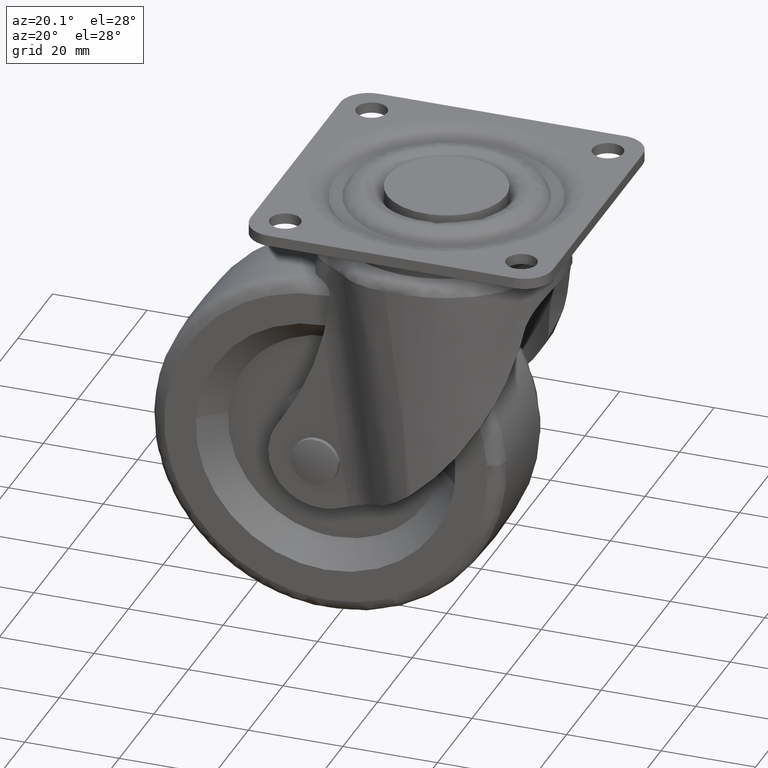
[diagram: clean part render]
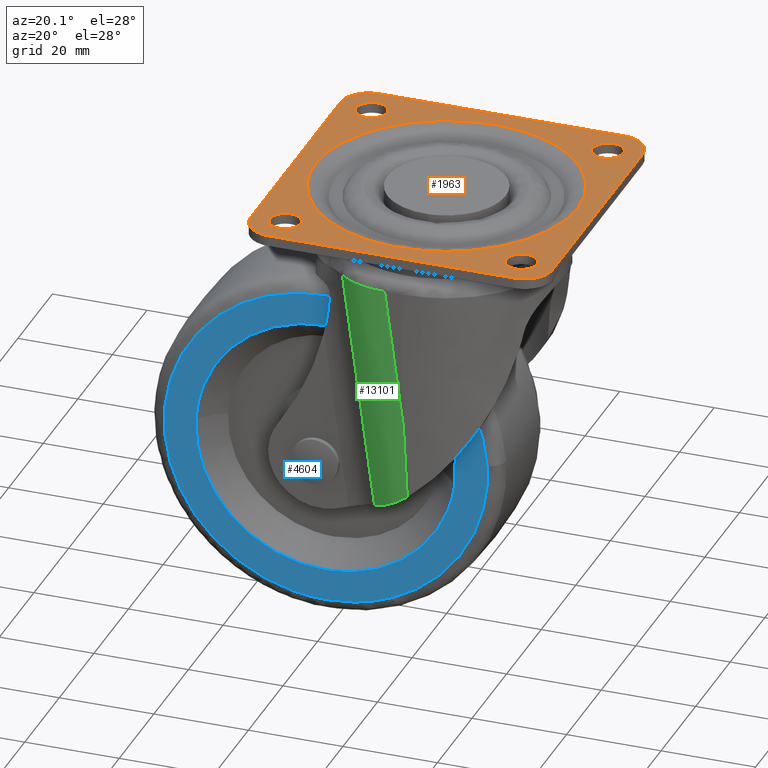
[diagram: same view with three faces highlighted in distinct colors, each labeled with its STEP entity id]
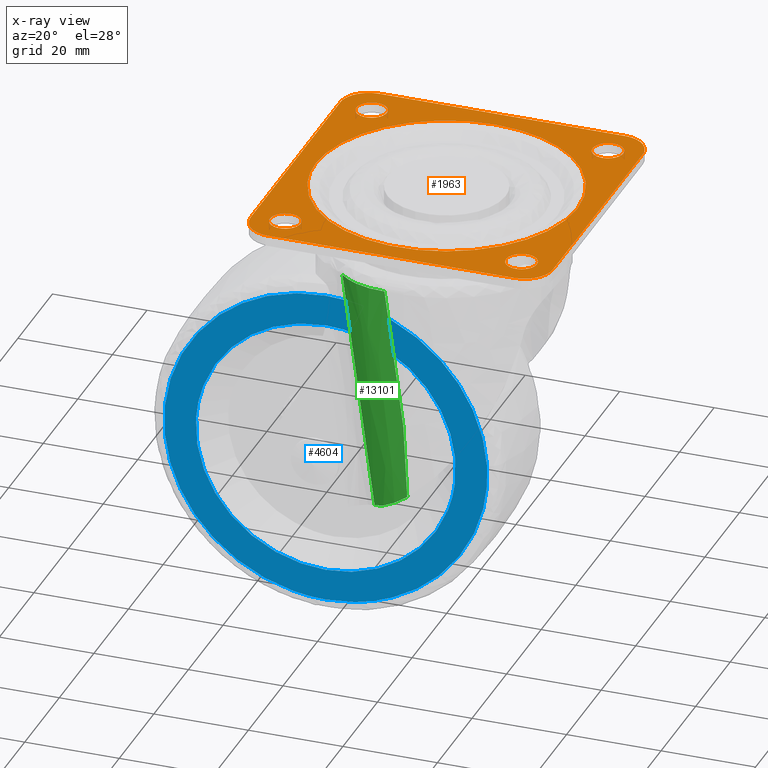
[diagram: x-ray of the same camera — body ghosted, the three highlighted faces saturated]
A machine part, auxiliary view with three faces highlighted in distinct colors.
The next image is the same camera in x-ray (body ghosted, the three faces saturated) — at least one of them is partly hidden behind the body in this view.
Their STEP definitions:

[orange] entity #1963 — the highlighted face is a freeform B-spline surface patch.
#66=CARTESIAN_POINT('',(-25.383611262667031,21.772719039321959,-2.484500E-017));
#67=VERTEX_POINT('',#66);
#68=CARTESIAN_POINT('',(-21.750000000000000,25.0,0.0));
#69=VERTEX_POINT('',#68);
#70=CARTESIAN_POINT('',(-25.383611262667031,21.772719039321956,-2.484500E-017));
#71=CARTESIAN_POINT('',(-25.192478388901616,21.750000000000000,0.0));
#72=CARTESIAN_POINT('',(-25.0,21.750000000000000,0.0));
#73=CARTESIAN_POINT('',(-21.750000000000004,21.750000000000004,0.0));
#74=CARTESIAN_POINT('',(-21.750000000000000,25.0,0.0));
#82=(BOUNDED_CURVE()B_SPLINE_CURVE(2,(#70,#71,#72,#73,#74),.UNSPECIFIED.,.F.,.U.)B_SPLINE_CURVE_WITH_KNOTS((3,2,3),(0.229562473512234,0.250000000000000,0.500000000000000),.UNSPECIFIED.)CURVE()GEOMETRIC_REPRESENTATION_ITEM()RATIONAL_B_SPLINE_CURVE((0.956026754181201,0.976055948329652,1.0,0.707106781186547,1.0))REPRESENTATION_ITEM(''));
#83=EDGE_CURVE('',#67,#69,#82,.T.);
#85=CARTESIAN_POINT('',(-24.801592246405111,28.243938094864550,-2.081668E-017));
#86=VERTEX_POINT('',#85);
#87=CARTESIAN_POINT('',(-21.750000000000000,25.0,0.0));
#88=CARTESIAN_POINT('',(-21.750000000000000,28.057294717242190,0.0));
#89=CARTESIAN_POINT('',(-24.801592246405107,28.243938094864546,-2.081668E-017));
#97=(BOUNDED_CURVE()B_SPLINE_CURVE(2,(#87,#88,#89),.UNSPECIFIED.,.F.,.U.)B_SPLINE_CURVE_WITH_KNOTS((3,3),(0.500000000000000,0.739332962230627),.UNSPECIFIED.)CURVE()GEOMETRIC_REPRESENTATION_ITEM()RATIONAL_B_SPLINE_CURVE((1.0,0.719603993296452,0.976072041648896))REPRESENTATION_ITEM(''));
#98=EDGE_CURVE('',#69,#86,#97,.T.);
#165=CARTESIAN_POINT('',(-28.250000000000000,25.0,0.0));
#166=VERTEX_POINT('',#165);
#167=CARTESIAN_POINT('',(-28.250000000000000,25.0,0.0));
#168=CARTESIAN_POINT('',(-28.250000000000007,22.113432790716725,0.0));
#169=CARTESIAN_POINT('',(-25.383611262667035,21.772719039321952,-2.484500E-017));
#177=(BOUNDED_CURVE()B_SPLINE_CURVE(2,(#167,#168,#169),.UNSPECIFIED.,.F.,.U.)B_SPLINE_CURVE_WITH_KNOTS((3,3),(0.0,0.229562473512234),.UNSPECIFIED.)CURVE()GEOMETRIC_REPRESENTATION_ITEM()RATIONAL_B_SPLINE_CURVE((1.0,0.731050832856896,0.956026754181201))REPRESENTATION_ITEM(''));
#178=EDGE_CURVE('',#166,#67,#177,.T.);
#212=CARTESIAN_POINT('',(-24.801592246405104,28.243938094864550,-2.081668E-017));
#213=CARTESIAN_POINT('',(-24.900703519172684,28.250000000000004,0.0));
#214=CARTESIAN_POINT('',(-25.0,28.250000000000000,0.0));
#215=CARTESIAN_POINT('',(-28.250000000000004,28.250000000000004,0.0));
#216=CARTESIAN_POINT('',(-28.250000000000000,25.0,0.0));
#224=(BOUNDED_CURVE()B_SPLINE_CURVE(2,(#212,#213,#214,#215,#216),.UNSPECIFIED.,.F.,.U.)B_SPLINE_CURVE_WITH_KNOTS((3,2,3),(0.739332962230627,0.750000000000000,1.0),.UNSPECIFIED.)CURVE()GEOMETRIC_REPRESENTATION_ITEM()RATIONAL_B_SPLINE_CURVE((0.976072041648896,0.987502787890095,1.0,0.707106781186547,1.0))REPRESENTATION_ITEM(''));
#225=EDGE_CURVE('',#86,#166,#224,.T.);
#468=CARTESIAN_POINT('',(24.616388737332969,21.772719039321959,-2.484500E-017));
#469=VERTEX_POINT('',#468);
#470=CARTESIAN_POINT('',(28.250000000000000,25.0,0.0));
#471=VERTEX_POINT('',#470);
#472=CARTESIAN_POINT('',(24.616388737332972,21.772719039321963,-2.484500E-017));
#473=CARTESIAN_POINT('',(24.807521611098380,21.750000000000004,0.0));
#474=CARTESIAN_POINT('',(25.0,21.750000000000000,0.0));
#475=CARTESIAN_POINT('',(28.250000000000004,21.750000000000004,0.0));
#476=CARTESIAN_POINT('',(28.250000000000000,25.0,0.0));
#484=(BOUNDED_CURVE()B_SPLINE_CURVE(2,(#472,#473,#474,#475,#476),.UNSPECIFIED.,.F.,.U.)B_SPLINE_CURVE_WITH_KNOTS((3,2,3),(0.229562473512233,0.250000000000000,0.500000000000000),.UNSPECIFIED.)CURVE()GEOMETRIC_REPRESENTATION_ITEM()RATIONAL_B_SPLINE_CURVE((0.956026754181200,0.976055948329651,1.0,0.707106781186547,1.0))REPRESENTATION_ITEM(''));
#485=EDGE_CURVE('',#469,#471,#484,.T.);
#487=CARTESIAN_POINT('',(25.198407753594889,28.243938094864550,-2.081668E-017));
#488=VERTEX_POINT('',#487);
#489=CARTESIAN_POINT('',(28.250000000000000,25.0,0.0));
#490=CARTESIAN_POINT('',(28.249999999999996,28.057294717242190,0.0));
#491=CARTESIAN_POINT('',(25.198407753594896,28.243938094864546,-2.081668E-017));
#499=(BOUNDED_CURVE()B_SPLINE_CURVE(2,(#489,#490,#491),.UNSPECIFIED.,.F.,.U.)B_SPLINE_CURVE_WITH_KNOTS((3,3),(0.500000000000000,0.739332962230627),.UNSPECIFIED.)CURVE()GEOMETRIC_REPRESENTATION_ITEM()RATIONAL_B_SPLINE_CURVE((1.0,0.719603993296452,0.976072041648896))REPRESENTATION_ITEM(''));
#500=EDGE_CURVE('',#471,#488,#499,.T.);
#567=CARTESIAN_POINT('',(21.750000000000000,25.0,0.0));
#568=VERTEX_POINT('',#567);
#569=CARTESIAN_POINT('',(21.750000000000000,25.0,0.0));
#570=CARTESIAN_POINT('',(21.750000000000004,22.113432790716718,0.0));
#571=CARTESIAN_POINT('',(24.616388737332969,21.772719039321956,-2.484500E-017));
#579=(BOUNDED_CURVE()B_SPLINE_CURVE(2,(#569,#570,#571),.UNSPECIFIED.,.F.,.U.)B_SPLINE_CURVE_WITH_KNOTS((3,3),(0.0,0.229562473512233),.UNSPECIFIED.)CURVE()GEOMETRIC_REPRESENTATION_ITEM()RATIONAL_B_SPLINE_CURVE((1.0,0.731050832856896,0.956026754181201))REPRESENTATION_ITEM(''));
#580=EDGE_CURVE('',#568,#469,#579,.T.);
#614=CARTESIAN_POINT('',(25.198407753594889,28.243938094864554,-2.081668E-017));
#615=CARTESIAN_POINT('',(25.099296480827327,28.250000000000000,0.0));
#616=CARTESIAN_POINT('',(25.0,28.250000000000000,0.0));
#617=CARTESIAN_POINT('',(21.750000000000004,28.250000000000004,0.0));
#618=CARTESIAN_POINT('',(21.750000000000000,25.0,0.0));
#626=(BOUNDED_CURVE()B_SPLINE_CURVE(2,(#614,#615,#616,#617,#618),.UNSPECIFIED.,.F.,.U.)B_SPLINE_CURVE_WITH_KNOTS((3,2,3),(0.739332962230627,0.750000000000000,1.0),.UNSPECIFIED.)CURVE()GEOMETRIC_REPRESENTATION_ITEM()RATIONAL_B_SPLINE_CURVE((0.976072041648895,0.987502787890095,1.0,0.707106781186547,1.0))REPRESENTATION_ITEM(''));
#627=EDGE_CURVE('',#488,#568,#626,.T.);
#654=CARTESIAN_POINT('',(24.616388737332969,-28.227280960678041,-2.484500E-017));
#655=VERTEX_POINT('',#654);
#656=CARTESIAN_POINT('',(28.250000000000000,-25.0,0.0));
#657=VERTEX_POINT('',#656);
#658=CARTESIAN_POINT('',(24.616388737332962,-28.227280960678044,-2.484500E-017));
#659=CARTESIAN_POINT('',(24.807521611098380,-28.250000000000000,0.0));
#660=CARTESIAN_POINT('',(25.0,-28.250000000000000,0.0));
#661=CARTESIAN_POINT('',(28.250000000000004,-28.250000000000004,0.0));
#662=CARTESIAN_POINT('',(28.250000000000000,-25.0,0.0));
#670=(BOUNDED_CURVE()B_SPLINE_CURVE(2,(#658,#659,#660,#661,#662),.UNSPECIFIED.,.F.,.U.)B_SPLINE_CURVE_WITH_KNOTS((3,2,3),(0.229562473512233,0.250000000000000,0.500000000000000),.UNSPECIFIED.)CURVE()GEOMETRIC_REPRESENTATION_ITEM()RATIONAL_B_SPLINE_CURVE((0.956026754181200,0.976055948329651,1.0,0.707106781186547,1.0))REPRESENTATION_ITEM(''));
#671=EDGE_CURVE('',#655,#657,#670,.T.);
#673=CARTESIAN_POINT('',(25.198407753594889,-21.756061905135450,-2.081668E-017));
#674=VERTEX_POINT('',#673);
#675=CARTESIAN_POINT('',(28.250000000000000,-25.0,0.0));
#676=CARTESIAN_POINT('',(28.249999999999996,-21.942705282757821,0.0));
#677=CARTESIAN_POINT('',(25.198407753594896,-21.756061905135454,-2.081668E-017));
#685=(BOUNDED_CURVE()B_SPLINE_CURVE(2,(#675,#676,#677),.UNSPECIFIED.,.F.,.U.)B_SPLINE_CURVE_WITH_KNOTS((3,3),(0.500000000000000,0.739332962230627),.UNSPECIFIED.)CURVE()GEOMETRIC_REPRESENTATION_ITEM()RATIONAL_B_SPLINE_CURVE((1.0,0.719603993296452,0.976072041648896))REPRESENTATION_ITEM(''));
#686=EDGE_CURVE('',#657,#674,#685,.T.);
#753=CARTESIAN_POINT('',(21.750000000000000,-25.0,0.0));
#754=VERTEX_POINT('',#753);
#755=CARTESIAN_POINT('',(21.750000000000000,-25.0,0.0));
#756=CARTESIAN_POINT('',(21.750000000000011,-27.886567209283278,0.0));
#757=CARTESIAN_POINT('',(24.616388737332969,-28.227280960678044,-2.484500E-017));
#765=(BOUNDED_CURVE()B_SPLINE_CURVE(2,(#755,#756,#757),.UNSPECIFIED.,.F.,.U.)B_SPLINE_CURVE_WITH_KNOTS((3,3),(0.0,0.229562473512233),.UNSPECIFIED.)CURVE()GEOMETRIC_REPRESENTATION_ITEM()RATIONAL_B_SPLINE_CURVE((1.0,0.731050832856896,0.956026754181200))REPRESENTATION_ITEM(''));
#766=EDGE_CURVE('',#754,#655,#765,.T.);
#800=CARTESIAN_POINT('',(25.198407753594893,-21.756061905135457,-2.081668E-017));
#801=CARTESIAN_POINT('',(25.099296480827316,-21.750000000000000,0.0));
#802=CARTESIAN_POINT('',(25.0,-21.750000000000000,0.0));
#803=CARTESIAN_POINT('',(21.750000000000004,-21.750000000000004,0.0));
#804=CARTESIAN_POINT('',(21.750000000000000,-25.0,0.0));
#812=(BOUNDED_CURVE()B_SPLINE_CURVE(2,(#800,#801,#802,#803,#804),.UNSPECIFIED.,.F.,.U.)B_SPLINE_CURVE_WITH_KNOTS((3,2,3),(0.739332962230627,0.750000000000000,1.0),.UNSPECIFIED.)CURVE()GEOMETRIC_REPRESENTATION_ITEM()RATIONAL_B_SPLINE_CURVE((0.976072041648895,0.987502787890095,1.0,0.707106781186547,1.0))REPRESENTATION_ITEM(''));
#813=EDGE_CURVE('',#674,#754,#812,.T.);
#840=CARTESIAN_POINT('',(-25.383611262667031,-28.227280960678041,-2.484500E-017));
#841=VERTEX_POINT('',#840);
#842=CARTESIAN_POINT('',(-21.750000000000000,-25.0,0.0));
#843=VERTEX_POINT('',#842);
#844=CARTESIAN_POINT('',(-25.383611262667028,-28.227280960678044,-2.484500E-017));
#845=CARTESIAN_POINT('',(-25.192478388901623,-28.250000000000000,0.0));
#846=CARTESIAN_POINT('',(-25.0,-28.250000000000000,0.0));
#847=CARTESIAN_POINT('',(-21.750000000000004,-28.250000000000004,0.0));
#848=CARTESIAN_POINT('',(-21.750000000000000,-25.0,0.0));
#856=(BOUNDED_CURVE()B_SPLINE_CURVE(2,(#844,#845,#846,#847,#848),.UNSPECIFIED.,.F.,.U.)B_SPLINE_CURVE_WITH_KNOTS((3,2,3),(0.229562473512233,0.250000000000000,0.500000000000000),.UNSPECIFIED.)CURVE()GEOMETRIC_REPRESENTATION_ITEM()RATIONAL_B_SPLINE_CURVE((0.956026754181200,0.976055948329651,1.0,0.707106781186547,1.0))REPRESENTATION_ITEM(''));
#857=EDGE_CURVE('',#841,#843,#856,.T.);
#859=CARTESIAN_POINT('',(-24.801592246405111,-21.756061905135450,-2.081668E-017));
#860=VERTEX_POINT('',#859);
#861=CARTESIAN_POINT('',(-21.750000000000000,-25.0,0.0));
#862=CARTESIAN_POINT('',(-21.750000000000000,-21.942705282757821,0.0));
#863=CARTESIAN_POINT('',(-24.801592246405107,-21.756061905135454,-2.081668E-017));
#871=(BOUNDED_CURVE()B_SPLINE_CURVE(2,(#861,#862,#863),.UNSPECIFIED.,.F.,.U.)B_SPLINE_CURVE_WITH_KNOTS((3,3),(0.500000000000000,0.739332962230627),.UNSPECIFIED.)CURVE()GEOMETRIC_REPRESENTATION_ITEM()RATIONAL_B_SPLINE_CURVE((1.0,0.719603993296452,0.976072041648896))REPRESENTATION_ITEM(''));
#872=EDGE_CURVE('',#843,#860,#871,.T.);
#939=CARTESIAN_POINT('',(-28.250000000000000,-25.0,0.0));
#940=VERTEX_POINT('',#939);
#941=CARTESIAN_POINT('',(-28.250000000000000,-25.0,0.0));
#942=CARTESIAN_POINT('',(-28.250000000000004,-27.886567209283278,0.0));
#943=CARTESIAN_POINT('',(-25.383611262667035,-28.227280960678044,-2.484500E-017));
#951=(BOUNDED_CURVE()B_SPLINE_CURVE(2,(#941,#942,#943),.UNSPECIFIED.,.F.,.U.)B_SPLINE_CURVE_WITH_KNOTS((3,3),(0.0,0.229562473512233),.UNSPECIFIED.)CURVE()GEOMETRIC_REPRESENTATION_ITEM()RATIONAL_B_SPLINE_CURVE((1.0,0.731050832856896,0.956026754181200))REPRESENTATION_ITEM(''));
#952=EDGE_CURVE('',#940,#841,#951,.T.);
#986=CARTESIAN_POINT('',(-24.801592246405104,-21.756061905135450,-2.081668E-017));
#987=CARTESIAN_POINT('',(-24.900703519172684,-21.750000000000000,0.0));
#988=CARTESIAN_POINT('',(-25.0,-21.750000000000000,0.0));
#989=CARTESIAN_POINT('',(-28.250000000000004,-21.750000000000004,0.0));
#990=CARTESIAN_POINT('',(-28.250000000000000,-25.0,0.0));
#998=(BOUNDED_CURVE()B_SPLINE_CURVE(2,(#986,#987,#988,#989,#990),.UNSPECIFIED.,.F.,.U.)B_SPLINE_CURVE_WITH_KNOTS((3,2,3),(0.739332962230627,0.750000000000000,1.0),.UNSPECIFIED.)CURVE()GEOMETRIC_REPRESENTATION_ITEM()RATIONAL_B_SPLINE_CURVE((0.976072041648896,0.987502787890095,1.0,0.707106781186547,1.0))REPRESENTATION_ITEM(''));
#999=EDGE_CURVE('',#860,#940,#998,.T.);
#1446=CARTESIAN_POINT('',(-23.394912635989090,14.846863023167520,-7.310575E-016));
#1447=VERTEX_POINT('',#1446);
#1461=CARTESIAN_POINT('',(-27.708325082500149,0.0,0.0));
#1462=VERTEX_POINT('',#1461);
#1463=CARTESIAN_POINT('',(-27.708325082500149,0.0,0.0));
#1464=CARTESIAN_POINT('',(-27.708325082500153,8.050012591533500,0.0));
#1465=CARTESIAN_POINT('',(-23.394912635989094,14.846863023167518,-7.310575E-016));
#1473=(BOUNDED_CURVE()B_SPLINE_CURVE(2,(#1463,#1464,#1465),.UNSPECIFIED.,.F.,.U.)B_SPLINE_CURVE_WITH_KNOTS((3,3),(0.0,0.091683542668478),.UNSPECIFIED.)CURVE()GEOMETRIC_REPRESENTATION_ITEM()RATIONAL_B_SPLINE_CURVE((1.0,0.892586048302436,0.863956829594100))REPRESENTATION_ITEM(''));
#1474=EDGE_CURVE('',#1462,#1447,#1473,.T.);
#1476=CARTESIAN_POINT('',(27.708325082500149,0.0,0.0));
#1477=VERTEX_POINT('',#1476);
#1478=CARTESIAN_POINT('',(27.708325082500149,0.0,0.0));
#1479=CARTESIAN_POINT('',(27.708325082500160,-27.708325082500160,0.0));
#1480=CARTESIAN_POINT('',(0.0,-27.708325082500149,0.0));
#1481=CARTESIAN_POINT('',(-27.708325082500160,-27.708325082500160,0.0));
#1482=CARTESIAN_POINT('',(-27.708325082500149,0.0,0.0));
#1490=(BOUNDED_CURVE()B_SPLINE_CURVE(2,(#1478,#1479,#1480,#1481,#1482),.UNSPECIFIED.,.F.,.U.)B_SPLINE_CURVE_WITH_KNOTS((3,2,3),(0.500000000000000,0.750000000000000,1.0),.UNSPECIFIED.)CURVE()GEOMETRIC_REPRESENTATION_ITEM()RATIONAL_B_SPLINE_CURVE((1.0,0.707106781186548,1.0,0.707106781186548,1.0))REPRESENTATION_ITEM(''));
#1491=EDGE_CURVE('',#1477,#1462,#1490,.T.);
#1493=CARTESIAN_POINT('',(14.846863023167510,23.394912635989090,-6.701361E-016));
#1494=VERTEX_POINT('',#1493);
#1495=CARTESIAN_POINT('',(14.846863023167510,23.394912635989098,-6.701361E-016));
#1496=CARTESIAN_POINT('',(27.708325082500160,15.232780618563753,0.0));
#1497=CARTESIAN_POINT('',(27.708325082500149,0.0,0.0));
#1505=(BOUNDED_CURVE()B_SPLINE_CURVE(2,(#1495,#1496,#1497),.UNSPECIFIED.,.F.,.U.)B_SPLINE_CURVE_WITH_KNOTS((3,3),(0.341683542668478,0.500000000000000),.UNSPECIFIED.)CURVE()GEOMETRIC_REPRESENTATION_ITEM()RATIONAL_B_SPLINE_CURVE((0.863956829594100,0.814520732884111,1.0))REPRESENTATION_ITEM(''));
#1506=EDGE_CURVE('',#1494,#1477,#1505,.T.);
#1557=CARTESIAN_POINT('',(-23.394912635989098,14.846863023167520,-7.310575E-016));
#1558=CARTESIAN_POINT('',(-15.232780618563750,27.708325082500156,0.0));
#1559=CARTESIAN_POINT('',(0.0,27.708325082500149,0.0));
#1560=CARTESIAN_POINT('',(8.050012591533518,27.708325082500146,0.0));
#1561=CARTESIAN_POINT('',(14.846863023167510,23.394912635989098,-6.701361E-016));
#1569=(BOUNDED_CURVE()B_SPLINE_CURVE(2,(#1557,#1558,#1559,#1560,#1561),.UNSPECIFIED.,.F.,.U.)B_SPLINE_CURVE_WITH_KNOTS((3,2,3),(0.091683542668478,0.250000000000000,0.341683542668478),.UNSPECIFIED.)CURVE()GEOMETRIC_REPRESENTATION_ITEM()RATIONAL_B_SPLINE_CURVE((0.863956829594100,0.814520732884111,1.0,0.892586048302436,0.863956829594100))REPRESENTATION_ITEM(''));
#1570=EDGE_CURVE('',#1447,#1494,#1569,.T.);
#1838=CARTESIAN_POINT('',(-35.196799875955577,35.196799875955577,0.0));
#1839=CARTESIAN_POINT('',(35.196801592569351,35.196799875955577,0.0));
#1840=CARTESIAN_POINT('',(-35.196799875955577,-35.196801592569351,0.0));
#1841=CARTESIAN_POINT('',(35.196801592569351,-35.196801592569351,0.0));
#1842=B_SPLINE_SURFACE_WITH_KNOTS('',1,1,((#1838,#1840),(#1839,#1841)),.UNSPECIFIED.,.F.,.F.,.U.,(2,2),(2,2),(0.0,70.393601468524935),(0.0,70.393601468524935),.UNSPECIFIED.);
#1843=CARTESIAN_POINT('',(32.0,26.0,0.0));
#1844=VERTEX_POINT('',#1843);
#1845=CARTESIAN_POINT('',(26.0,32.0,0.0));
#1846=VERTEX_POINT('',#1845);
#1847=CARTESIAN_POINT('',(32.0,26.0,0.0));
#1848=CARTESIAN_POINT('',(31.999999999999996,31.999999999999996,0.0));
#1849=CARTESIAN_POINT('',(26.0,32.0,0.0));
#1857=(BOUNDED_CURVE()B_SPLINE_CURVE(2,(#1847,#1848,#1849),.UNSPECIFIED.,.F.,.U.)CURVE()GEOMETRIC_REPRESENTATION_ITEM()QUASI_UNIFORM_CURVE()RATIONAL_B_SPLINE_CURVE((1.0,0.707106781186548,1.0))REPRESENTATION_ITEM(''));
#1858=EDGE_CURVE('',#1844,#1846,#1857,.T.);
#1859=ORIENTED_EDGE('',*,*,#1858,.T.);
#1860=CARTESIAN_POINT('',(-26.0,32.0,0.0));
#1861=VERTEX_POINT('',#1860);
#1862=CARTESIAN_POINT('',(26.0,32.0,0.0));
#1863=CARTESIAN_POINT('',(-26.0,32.0,0.0));
#1864=QUASI_UNIFORM_CURVE('',1,(#1862,#1863),.UNSPECIFIED.,.F.,.U.);
#1865=EDGE_CURVE('',#1846,#1861,#1864,.T.);
#1866=ORIENTED_EDGE('',*,*,#1865,.T.);
#1867=CARTESIAN_POINT('',(-32.0,26.0,0.0));
#1868=VERTEX_POINT('',#1867);
#1869=CARTESIAN_POINT('',(-26.0,32.0,0.0));
#1870=CARTESIAN_POINT('',(-31.999999999999996,31.999999999999996,0.0));
#1871=CARTESIAN_POINT('',(-32.0,26.0,0.0));
#1879=(BOUNDED_CURVE()B_SPLINE_CURVE(2,(#1869,#1870,#1871),.UNSPECIFIED.,.F.,.U.)CURVE()GEOMETRIC_REPRESENTATION_ITEM()QUASI_UNIFORM_CURVE()RATIONAL_B_SPLINE_CURVE((1.0,0.707106781186548,1.0))REPRESENTATION_ITEM(''));
#1880=EDGE_CURVE('',#1861,#1868,#1879,.T.);
#1881=ORIENTED_EDGE('',*,*,#1880,.T.);
#1882=CARTESIAN_POINT('',(-32.0,-26.0,0.0));
#1883=VERTEX_POINT('',#1882);
#1884=CARTESIAN_POINT('',(-32.0,26.0,0.0));
#1885=CARTESIAN_POINT('',(-32.0,-26.0,0.0));
#1886=QUASI_UNIFORM_CURVE('',1,(#1884,#1885),.UNSPECIFIED.,.F.,.U.);
#1887=EDGE_CURVE('',#1868,#1883,#1886,.T.);
#1888=ORIENTED_EDGE('',*,*,#1887,.T.);
#1889=CARTESIAN_POINT('',(-26.0,-32.0,0.0));
#1890=VERTEX_POINT('',#1889);
#1891=CARTESIAN_POINT('',(-32.0,-26.0,0.0));
#1892=CARTESIAN_POINT('',(-31.999999999999996,-31.999999999999996,0.0));
#1893=CARTESIAN_POINT('',(-26.0,-32.0,0.0));
#1901=(BOUNDED_CURVE()B_SPLINE_CURVE(2,(#1891,#1892,#1893),.UNSPECIFIED.,.F.,.U.)CURVE()GEOMETRIC_REPRESENTATION_ITEM()QUASI_UNIFORM_CURVE()RATIONAL_B_SPLINE_CURVE((1.0,0.707106781186548,1.0))REPRESENTATION_ITEM(''));
#1902=EDGE_CURVE('',#1883,#1890,#1901,.T.);
#1903=ORIENTED_EDGE('',*,*,#1902,.T.);
#1904=CARTESIAN_POINT('',(26.0,-32.0,0.0));
#1905=VERTEX_POINT('',#1904);
#1906=CARTESIAN_POINT('',(-26.0,-32.0,0.0));
#1907=CARTESIAN_POINT('',(26.0,-32.0,0.0));
#1908=QUASI_UNIFORM_CURVE('',1,(#1906,#1907),.UNSPECIFIED.,.F.,.U.);
#1909=EDGE_CURVE('',#1890,#1905,#1908,.T.);
#1910=ORIENTED_EDGE('',*,*,#1909,.T.);
#1911=CARTESIAN_POINT('',(32.0,-26.0,0.0));
#1912=VERTEX_POINT('',#1911);
#1913=CARTESIAN_POINT('',(26.0,-32.0,0.0));
#1914=CARTESIAN_POINT('',(31.999999999999996,-31.999999999999996,0.0));
#1915=CARTESIAN_POINT('',(32.0,-26.0,0.0));
#1923=(BOUNDED_CURVE()B_SPLINE_CURVE(2,(#1913,#1914,#1915),.UNSPECIFIED.,.F.,.U.)CURVE()GEOMETRIC_REPRESENTATION_ITEM()QUASI_UNIFORM_CURVE()RATIONAL_B_SPLINE_CURVE((1.0,0.707106781186548,1.0))REPRESENTATION_ITEM(''));
#1924=EDGE_CURVE('',#1905,#1912,#1923,.T.);
#1925=ORIENTED_EDGE('',*,*,#1924,.T.);
#1926=CARTESIAN_POINT('',(32.0,-26.0,0.0));
#1927=CARTESIAN_POINT('',(32.0,26.0,0.0));
#1928=QUASI_UNIFORM_CURVE('',1,(#1926,#1927),.UNSPECIFIED.,.F.,.U.);
#1929=EDGE_CURVE('',#1912,#1844,#1928,.T.);
#1930=ORIENTED_EDGE('',*,*,#1929,.T.);
#1931=EDGE_LOOP('',(#1859,#1866,#1881,#1888,#1903,#1910,#1925,#1930));
#1932=FACE_OUTER_BOUND('',#1931,.T.);
#1933=ORIENTED_EDGE('',*,*,#1491,.T.);
#1934=ORIENTED_EDGE('',*,*,#1474,.T.);
#1935=ORIENTED_EDGE('',*,*,#1570,.T.);
#1936=ORIENTED_EDGE('',*,*,#1506,.T.);
#1937=EDGE_LOOP('',(#1933,#1934,#1935,#1936));
#1938=FACE_BOUND('',#1937,.T.);
#1939=ORIENTED_EDGE('',*,*,#872,.F.);
#1940=ORIENTED_EDGE('',*,*,#857,.F.);
#1941=ORIENTED_EDGE('',*,*,#952,.F.);
#1942=ORIENTED_EDGE('',*,*,#999,.F.);
#1943=EDGE_LOOP('',(#1939,#1940,#1941,#1942));
#1944=FACE_BOUND('',#1943,.T.);
#1945=ORIENTED_EDGE('',*,*,#686,.F.);
#1946=ORIENTED_EDGE('',*,*,#671,.F.);
#1947=ORIENTED_EDGE('',*,*,#766,.F.);
#1948=ORIENTED_EDGE('',*,*,#813,.F.);
#1949=EDGE_LOOP('',(#1945,#1946,#1947,#1948));
#1950=FACE_BOUND('',#1949,.T.);
#1951=ORIENTED_EDGE('',*,*,#500,.F.);
#1952=ORIENTED_EDGE('',*,*,#485,.F.);
#1953=ORIENTED_EDGE('',*,*,#580,.F.);
#1954=ORIENTED_EDGE('',*,*,#627,.F.);
#1955=EDGE_LOOP('',(#1951,#1952,#1953,#1954));
#1956=FACE_BOUND('',#1955,.T.);
#1957=ORIENTED_EDGE('',*,*,#98,.F.);
#1958=ORIENTED_EDGE('',*,*,#83,.F.);
#1959=ORIENTED_EDGE('',*,*,#178,.F.);
#1960=ORIENTED_EDGE('',*,*,#225,.F.);
#1961=EDGE_LOOP('',(#1957,#1958,#1959,#1960));
#1962=FACE_BOUND('',#1961,.T.);
#1963=ADVANCED_FACE('',(#1932,#1938,#1944,#1950,#1956,#1962),#1842,.F.);

[blue] entity #4604 — the highlighted face is a freeform B-spline surface patch.
#3012=CARTESIAN_POINT('',(27.307761975001188,-12.500000000011990,-59.745941453155552));
#3013=VERTEX_POINT('',#3012);
#3019=CARTESIAN_POINT('',(0.0,-12.500000000000000,-29.000000000000451));
#3020=VERTEX_POINT('',#3019);
#3021=CARTESIAN_POINT('',(27.307761975001192,-12.500000000011992,-59.745941453155552));
#3022=CARTESIAN_POINT('',(27.499999999999549,-12.500000000000007,-58.128663290521821));
#3023=CARTESIAN_POINT('',(27.499999999999549,-12.500000000000000,-56.500000000000000));
#3024=CARTESIAN_POINT('',(27.499999999999552,-12.500000000000000,-29.000000000000455));
#3025=CARTESIAN_POINT('',(0.0,-12.500000000000000,-29.000000000000451));
#3033=(BOUNDED_CURVE()B_SPLINE_CURVE(2,(#3021,#3022,#3023,#3024,#3025),.UNSPECIFIED.,.F.,.U.)B_SPLINE_CURVE_WITH_KNOTS((3,2,3),(0.229562473514489,0.250000000000000,0.500000000000000),.UNSPECIFIED.)CURVE()GEOMETRIC_REPRESENTATION_ITEM()RATIONAL_B_SPLINE_CURVE((0.956026754185621,0.976055948332294,1.0,0.707106781186548,1.0))REPRESENTATION_ITEM(''));
#3034=EDGE_CURVE('',#3013,#3020,#3033,.T.);
#3036=CARTESIAN_POINT('',(-27.448706956604550,-12.500000000006819,-54.821165162739497));
#3037=VERTEX_POINT('',#3036);
#3038=CARTESIAN_POINT('',(0.0,-12.500000000000000,-29.000000000000451));
#3039=CARTESIAN_POINT('',(-25.869416839808945,-12.500000000000000,-29.000000000000458));
#3040=CARTESIAN_POINT('',(-27.448706956604543,-12.500000000006825,-54.821165162739504));
#3048=(BOUNDED_CURVE()B_SPLINE_CURVE(2,(#3038,#3039,#3040),.UNSPECIFIED.,.F.,.U.)B_SPLINE_CURVE_WITH_KNOTS((3,3),(0.500000000000000,0.739332962241321),.UNSPECIFIED.)CURVE()GEOMETRIC_REPRESENTATION_ITEM()RATIONAL_B_SPLINE_CURVE((1.0,0.719603993283924,0.976072041671814))REPRESENTATION_ITEM(''));
#3049=EDGE_CURVE('',#3020,#3037,#3048,.T.);
#3123=CARTESIAN_POINT('',(0.0,-12.500000000000000,-83.999999999999545));
#3124=VERTEX_POINT('',#3123);
#3125=CARTESIAN_POINT('',(-27.448706956604543,-12.500000000006821,-54.821165162739511));
#3126=CARTESIAN_POINT('',(-27.499999999999549,-12.499999999999996,-55.659799009237126));
#3127=CARTESIAN_POINT('',(-27.499999999999549,-12.500000000000000,-56.500000000000000));
#3128=CARTESIAN_POINT('',(-27.499999999999552,-12.500000000000000,-83.999999999999559));
#3129=CARTESIAN_POINT('',(0.0,-12.500000000000000,-83.999999999999545));
#3137=(BOUNDED_CURVE()B_SPLINE_CURVE(2,(#3125,#3126,#3127,#3128,#3129),.UNSPECIFIED.,.F.,.U.)B_SPLINE_CURVE_WITH_KNOTS((3,2,3),(0.739332962241320,0.750000000000000,1.0),.UNSPECIFIED.)CURVE()GEOMETRIC_REPRESENTATION_ITEM()RATIONAL_B_SPLINE_CURVE((0.976072041671813,0.987502787902623,1.0,0.707106781186548,1.0))REPRESENTATION_ITEM(''));
#3138=EDGE_CURVE('',#3037,#3124,#3137,.T.);
#3140=CARTESIAN_POINT('',(0.0,-12.500000000000000,-83.999999999999545));
#3141=CARTESIAN_POINT('',(24.424799463494075,-12.500000000000000,-83.999999999999531));
#3142=CARTESIAN_POINT('',(27.307761975001185,-12.500000000011998,-59.745941453155545));
#3150=(BOUNDED_CURVE()B_SPLINE_CURVE(2,(#3140,#3141,#3142),.UNSPECIFIED.,.F.,.U.)B_SPLINE_CURVE_WITH_KNOTS((3,3),(0.0,0.229562473514489),.UNSPECIFIED.)CURVE()GEOMETRIC_REPRESENTATION_ITEM()RATIONAL_B_SPLINE_CURVE((1.0,0.731050832854254,0.956026754185622))REPRESENTATION_ITEM(''));
#3151=EDGE_CURVE('',#3124,#3013,#3150,.T.);
#3978=CARTESIAN_POINT('',(14.065030227548240,-12.500000000000000,-87.665944071560347));
#3979=VERTEX_POINT('',#3978);
#3980=CARTESIAN_POINT('',(34.125234529770673,-12.500000000000000,-54.353022224459579));
#3981=VERTEX_POINT('',#3980);
#3982=CARTESIAN_POINT('',(14.065030227548236,-12.499999999999996,-87.665944071560347));
#3983=CARTESIAN_POINT('',(34.192706021806003,-12.500000000000000,-78.582427530333248));
#3984=CARTESIAN_POINT('',(34.192706021806003,-12.500000000000000,-56.500000000000000));
#3985=CARTESIAN_POINT('',(34.192706021806003,-12.499999999999996,-55.425450923669658));
#3986=CARTESIAN_POINT('',(34.125234529770673,-12.499999999999996,-54.353022224459579));
#3994=(BOUNDED_CURVE()B_SPLINE_CURVE(2,(#3982,#3983,#3984,#3985,#3986),.UNSPECIFIED.,.F.,.U.)B_SPLINE_CURVE_WITH_KNOTS((3,2,3),(0.069856974352272,0.250000000000000,0.260968089261115),.UNSPECIFIED.)CURVE()GEOMETRIC_REPRESENTATION_ITEM()RATIONAL_B_SPLINE_CURVE((0.882053103076144,0.788949317484971,1.0,0.987150084128315,0.975427680450857))REPRESENTATION_ITEM(''));
#3995=EDGE_CURVE('',#3979,#3981,#3994,.T.);
#4080=CARTESIAN_POINT('',(0.0,-12.500000000000000,-90.692706021806018));
#4081=VERTEX_POINT('',#4080);
#4082=CARTESIAN_POINT('',(0.0,-12.500000000000000,-90.692706021806018));
#4083=CARTESIAN_POINT('',(7.358191196782825,-12.500000000000004,-90.692706021806018));
#4084=CARTESIAN_POINT('',(14.065030227548236,-12.499999999999996,-87.665944071560347));
#4092=(BOUNDED_CURVE()B_SPLINE_CURVE(2,(#4082,#4083,#4084),.UNSPECIFIED.,.F.,.U.)B_SPLINE_CURVE_WITH_KNOTS((3,3),(0.0,0.069856974352272),.UNSPECIFIED.)CURVE()GEOMETRIC_REPRESENTATION_ITEM()RATIONAL_B_SPLINE_CURVE((1.0,0.918157463701577,0.882053103076144))REPRESENTATION_ITEM(''));
#4093=EDGE_CURVE('',#4081,#3979,#4092,.T.);
#4095=CARTESIAN_POINT('',(0.0,-12.500000000000000,-22.307293978194000));
#4096=VERTEX_POINT('',#4095);
#4097=CARTESIAN_POINT('',(0.0,-12.500000000000000,-22.307293978194000));
#4098=CARTESIAN_POINT('',(-34.192706021805996,-12.499999999999998,-22.307293978193997));
#4099=CARTESIAN_POINT('',(-34.192706021806003,-12.500000000000000,-56.500000000000000));
#4100=CARTESIAN_POINT('',(-34.192706021805996,-12.499999999999998,-90.692706021806018));
#4101=CARTESIAN_POINT('',(0.0,-12.500000000000000,-90.692706021806018));
#4109=(BOUNDED_CURVE()B_SPLINE_CURVE(2,(#4097,#4098,#4099,#4100,#4101),.UNSPECIFIED.,.F.,.U.)B_SPLINE_CURVE_WITH_KNOTS((3,2,3),(0.500000000000000,0.750000000000000,1.0),.UNSPECIFIED.)CURVE()GEOMETRIC_REPRESENTATION_ITEM()RATIONAL_B_SPLINE_CURVE((1.0,0.707106781186547,1.0,0.707106781186547,1.0))REPRESENTATION_ITEM(''));
#4110=EDGE_CURVE('',#4096,#4081,#4109,.T.);
#4112=CARTESIAN_POINT('',(34.125234529770673,-12.500000000000002,-54.353022224459579));
#4113=CARTESIAN_POINT('',(32.109088197241661,-12.500000000000000,-22.307293978193997));
#4114=CARTESIAN_POINT('',(0.0,-12.500000000000000,-22.307293978194000));
#4122=(BOUNDED_CURVE()B_SPLINE_CURVE(2,(#4112,#4113,#4114),.UNSPECIFIED.,.F.,.U.)B_SPLINE_CURVE_WITH_KNOTS((3,3),(0.260968089261115,0.500000000000000),.UNSPECIFIED.)CURVE()GEOMETRIC_REPRESENTATION_ITEM()RATIONAL_B_SPLINE_CURVE((0.975427680450857,0.719956697058233,1.0))REPRESENTATION_ITEM(''));
#4123=EDGE_CURVE('',#3981,#4096,#4122,.T.);
#4587=CARTESIAN_POINT('',(-37.608287247008718,-12.500000000000000,-94.108554408706240));
#4588=CARTESIAN_POINT('',(-37.608287247008711,-12.500000000000000,-18.891446202707009));
#4589=CARTESIAN_POINT('',(37.602857273105514,-12.500000000000000,-94.108554408706240));
#4590=CARTESIAN_POINT('',(37.602857273105514,-12.500000000000000,-18.891446202707009));
#4591=B_SPLINE_SURFACE_WITH_KNOTS('',1,1,((#4587,#4589),(#4588,#4590)),.UNSPECIFIED.,.F.,.F.,.U.,(2,2),(2,2),(0.0,75.217108205999239),(0.0,75.211144520114232),.UNSPECIFIED.);
#4592=ORIENTED_EDGE('',*,*,#4093,.T.);
#4593=ORIENTED_EDGE('',*,*,#3995,.T.);
#4594=ORIENTED_EDGE('',*,*,#4123,.T.);
#4595=ORIENTED_EDGE('',*,*,#4110,.T.);
#4596=EDGE_LOOP('',(#4592,#4593,#4594,#4595));
#4597=FACE_OUTER_BOUND('',#4596,.T.);
#4598=ORIENTED_EDGE('',*,*,#3049,.F.);
#4599=ORIENTED_EDGE('',*,*,#3034,.F.);
#4600=ORIENTED_EDGE('',*,*,#3151,.F.);
#4601=ORIENTED_EDGE('',*,*,#3138,.F.);
#4602=EDGE_LOOP('',(#4598,#4599,#4600,#4601));
#4603=FACE_BOUND('',#4602,.T.);
#4604=ADVANCED_FACE('',(#4597,#4603),#4591,.F.);

[green] entity #13101 — the highlighted face is a freeform B-spline surface patch.
#7843=CARTESIAN_POINT('',(7.653790E-016,-25.0,-41.716169822662103));
#7844=VERTEX_POINT('',#7843);
#7854=CARTESIAN_POINT('',(0.798783059416544,-24.943274166473451,-57.427129976727997));
#7855=VERTEX_POINT('',#7854);
#7856=CARTESIAN_POINT('',(0.798783059416544,-24.943274166473451,-57.427129976727997));
#7857=CARTESIAN_POINT('',(0.532285086178869,-24.981141526492902,-52.190242952928017));
#7858=CARTESIAN_POINT('',(0.266142707805921,-24.999999999999901,-46.953202926443574));
#7859=CARTESIAN_POINT('',(7.653790E-016,-25.0,-41.716169822662103));
#7860=QUASI_UNIFORM_CURVE('',3,(#7856,#7857,#7858,#7859),.UNSPECIFIED.,.F.,.U.);
#7861=EDGE_CURVE('',#7855,#7844,#7860,.T.);
#12003=CARTESIAN_POINT('',(-3.998128352982879,-25.0,-12.0));
#12004=VERTEX_POINT('',#12003);
#12358=CARTESIAN_POINT('',(-14.432799495323961,-20.829999999999998,-12.276776026784001));
#12359=VERTEX_POINT('',#12358);
#12375=CARTESIAN_POINT('',(-3.998128352982882,-25.0,-12.0));
#12376=CARTESIAN_POINT('',(-10.057751548302900,-24.999999999999996,-12.160729399990649));
#12377=CARTESIAN_POINT('',(-14.432799495323961,-20.829999999999998,-12.276776026784001));
#12385=(BOUNDED_CURVE()B_SPLINE_CURVE(2,(#12375,#12376,#12377),.UNSPECIFIED.,.F.,.U.)CURVE()GEOMETRIC_REPRESENTATION_ITEM()QUASI_UNIFORM_CURVE()RATIONAL_B_SPLINE_CURVE((1.0,0.927900856772967,1.0))REPRESENTATION_ITEM(''));
#12386=EDGE_CURVE('',#12004,#12359,#12385,.T.);
#12795=CARTESIAN_POINT('',(-7.625856253667890,-20.829999999999998,-62.869519301612293));
#12796=VERTEX_POINT('',#12795);
#12797=CARTESIAN_POINT('',(-14.432799495323961,-20.829999999999998,-12.276776026784001));
#12798=CARTESIAN_POINT('',(-7.625856253667890,-20.829999999999998,-62.869519301612293));
#12799=QUASI_UNIFORM_CURVE('',1,(#12797,#12798),.UNSPECIFIED.,.F.,.U.);
#12800=EDGE_CURVE('',#12359,#12796,#12799,.T.);
#13052=CARTESIAN_POINT('',(3.223209038164714,-24.994752928200139,-62.697558514467957));
#13053=CARTESIAN_POINT('',(-3.928335705100207,-24.994752928200139,-9.543557611351501));
#13054=CARTESIAN_POINT('',(-3.304307766617785,-25.169008024607216,-63.575795856881797));
#13055=CARTESIAN_POINT('',(-10.455852509882703,-25.169008024607216,-10.421794953765339));
#13056=CARTESIAN_POINT('',(-7.847602521270145,-20.436676666398835,-64.187068294848586));
#13057=CARTESIAN_POINT('',(-14.999147264535058,-20.436676666398842,-11.033067391732130));
#13065=(BOUNDED_SURFACE()B_SPLINE_SURFACE(1,2,((#13052,#13054,#13056),(#13053,#13055,#13057)),.UNSPECIFIED.,.F.,.F.,.U.)B_SPLINE_SURFACE_WITH_KNOTS((2,2),(3,3),(0.0,53.632941409393410),(0.0,12.596477656779950),.UNSPECIFIED.)GEOMETRIC_REPRESENTATION_ITEM()RATIONAL_B_SPLINE_SURFACE(((1.0,0.914608599321117,0.997899863799561),(1.0,0.914608599321117,0.997899863799561)))REPRESENTATION_ITEM('')SURFACE());
#13066=CARTESIAN_POINT('',(0.798783059416548,-24.943274166473461,-57.427129976728011));
#13067=CARTESIAN_POINT('',(0.073227075540455,-24.873942005858879,-57.996148600104853));
#13068=CARTESIAN_POINT('',(-0.656311470683985,-24.741033605509880,-58.538764573815037));
#13069=CARTESIAN_POINT('',(-1.753742617227853,-24.438940804746078,-59.314597356213604));
#13070=CARTESIAN_POINT('',(-2.120063761452413,-24.321054028407360,-59.566851083990557));
#13071=CARTESIAN_POINT('',(-2.669837530655176,-24.116787748636010,-59.935806980634403));
#13072=CARTESIAN_POINT('',(-2.853143149763528,-24.044120539934660,-60.057220954062323));
#13073=CARTESIAN_POINT('',(-3.128103526486045,-23.927986529432879,-60.236993686132656));
#13074=CARTESIAN_POINT('',(-3.219874540698989,-23.888032074133339,-60.296601850859119));
#13075=CARTESIAN_POINT('',(-3.402669070554248,-23.806029091720760,-60.414563325902947));
#13076=CARTESIAN_POINT('',(-3.493707119748768,-23.763978267857429,-60.472927401357943));
#13077=CARTESIAN_POINT('',(-4.309769896070656,-23.376085871277180,-60.992744497316579));
#13078=CARTESIAN_POINT('',(-5.012010401355135,-22.964582935286501,-61.416133805196218));
#13079=CARTESIAN_POINT('',(-6.024950031633428,-22.244144796708451,-61.999288296966377));
#13080=CARTESIAN_POINT('',(-6.355828023913831,-21.986731007152009,-62.184989755945452));
#13081=CARTESIAN_POINT('',(-6.840922496071171,-21.573585251697740,-62.451026868943543));
#13082=CARTESIAN_POINT('',(-7.000747357526941,-21.431360177198279,-62.537618356898960));
#13083=CARTESIAN_POINT('',(-7.237511113319633,-21.211060191936859,-62.664421981956004));
#13084=CARTESIAN_POINT('',(-7.315936546504740,-21.136466035509599,-62.706175807270867));
#13085=CARTESIAN_POINT('',(-7.471765535775581,-20.984917568252371,-62.788661874876396));
#13086=CARTESIAN_POINT('',(-7.549270543470985,-20.907857290946328,-62.829446818156789));
#13087=CARTESIAN_POINT('',(-7.625856253667905,-20.830000000000009,-62.869519301612257));
#13088=B_SPLINE_CURVE_WITH_KNOTS('',3,(#13066,#13067,#13068,#13069,#13070,#13071,#13072,#13073,#13074,#13075,#13076,#13077,#13078,#13079,#13080,#13081,#13082,#13083,#13084,#13085,#13086,#13087),.UNSPECIFIED.,.F.,.U.,(4,2,2,2,2,2,2,2,2,2,4),(0.0,0.250000000000002,0.375000000000003,0.437500000000004,0.468750000000004,0.500000000000004,0.750000000000002,0.875000000000001,0.937500000000000,0.968750000000000,1.0),.UNSPECIFIED.);
#13089=EDGE_CURVE('',#7855,#12796,#13088,.T.);
#13090=ORIENTED_EDGE('',*,*,#13089,.F.);
#13091=ORIENTED_EDGE('',*,*,#7861,.T.);
#13092=CARTESIAN_POINT('',(-3.998128352982879,-25.0,-12.0));
#13093=CARTESIAN_POINT('',(7.653790E-016,-25.0,-41.716169822662103));
#13094=QUASI_UNIFORM_CURVE('',1,(#13092,#13093),.UNSPECIFIED.,.F.,.U.);
#13095=EDGE_CURVE('',#12004,#7844,#13094,.T.);
#13096=ORIENTED_EDGE('',*,*,#13095,.F.);
#13097=ORIENTED_EDGE('',*,*,#12386,.T.);
#13098=ORIENTED_EDGE('',*,*,#12800,.T.);
#13099=EDGE_LOOP('',(#13090,#13091,#13096,#13097,#13098));
#13100=FACE_OUTER_BOUND('',#13099,.T.);
#13101=ADVANCED_FACE('',(#13100),#13065,.T.);